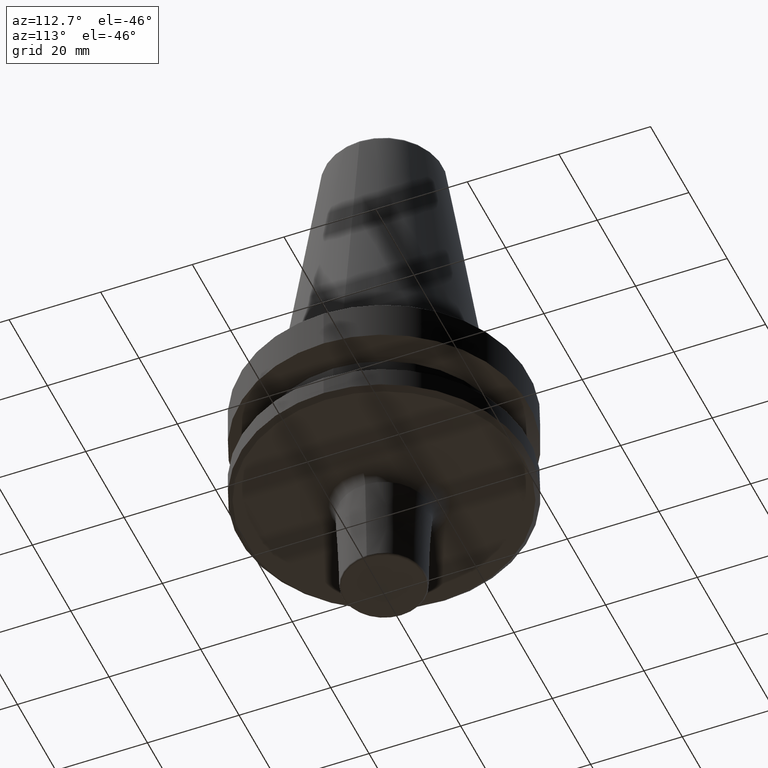
[diagram: clean part render]
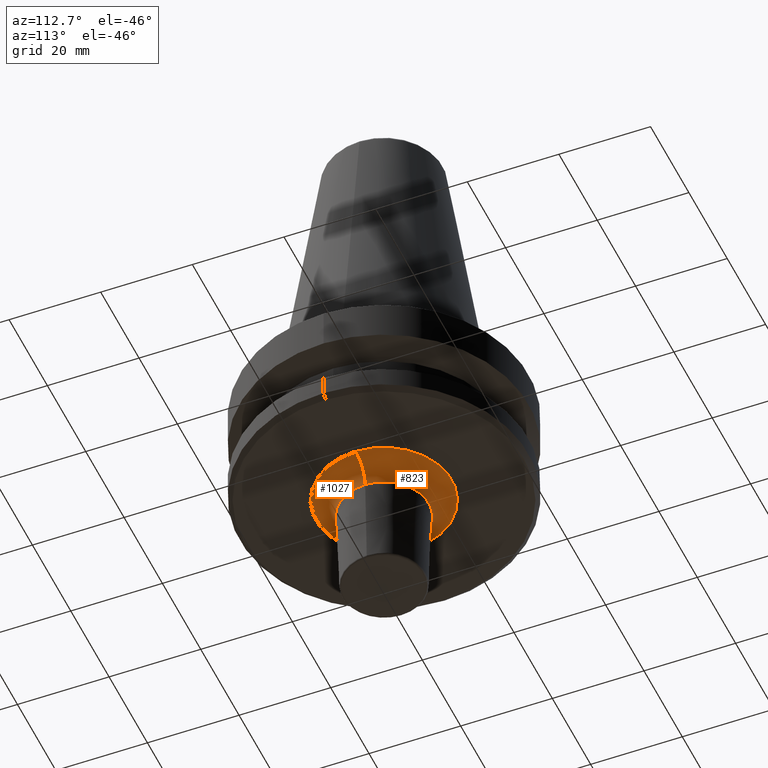
[diagram: same view with one multi-face feature highlighted, each face labeled with its STEP entity id]
A machine part, auxiliary view. The highlighted faces form ONE feature: a constant-radius fillet chain: 2 tangent blend faces with common blend radius 5 mm. The faces share edges in the B-rep.
Their STEP definitions:
[1] entity #823 (Torus):
#15 = CARTESIAN_POINT ( 'NONE',  ( 14.80399840127872000, 0.0000000000000000000, -92.40000000000806300 ) ) ;
#63 = DIRECTION ( 'NONE',  ( -0.0000000000000000000, -0.0000000000000000000, 1.000000000000000000 ) ) ;
#95 = CARTESIAN_POINT ( 'NONE',  ( 0.0000000000000000000, 0.0000000000000000000, -92.40000000000806300 ) ) ;
#122 = DIRECTION ( 'NONE',  ( 1.000000000000000000, 0.0000000000000000000, 0.0000000000000000000 ) ) ;
#142 = TOROIDAL_SURFACE ( 'NONE', #377, 14.80399840127872000, 4.999999999999993800 ) ;
#160 = CIRCLE ( 'NONE', #1022, 4.999999999999993800 ) ;
#175 = CARTESIAN_POINT ( 'NONE',  ( -14.80399840127872000, 1.812966925670851800E-015, -92.40000000000806300 ) ) ;
#194 = CARTESIAN_POINT ( 'NONE',  ( 0.0000000000000000000, 0.0000000000000000000, -97.20015980826369200 ) ) ;
#232 = AXIS2_PLACEMENT_3D ( 'NONE', #194, #964, #381 ) ;
#240 = DIRECTION ( 'NONE',  ( 1.224646799147353200E-016, 1.000000000000000000, 0.0000000000000000000 ) ) ;
#269 = EDGE_CURVE ( 'NONE', #420, #686, #848, .T. ) ;
#272 = AXIS2_PLACEMENT_3D ( 'NONE', #95, #437, #934 ) ;
#320 = CIRCLE ( 'NONE', #272, 14.80399840127872000 ) ;
#357 = DIRECTION ( 'NONE',  ( 0.0000000000000000000, 0.0000000000000000000, -1.000000000000000000 ) ) ;
#377 = AXIS2_PLACEMENT_3D ( 'NONE', #387, #63, #122 ) ;
#381 = DIRECTION ( 'NONE',  ( 1.000000000000000000, 0.0000000000000000000, 0.0000000000000000000 ) ) ;
#387 = CARTESIAN_POINT ( 'NONE',  ( 0.0000000000000000000, 0.0000000000000000000, -97.40000000000804900 ) ) ;
#395 = CIRCLE ( 'NONE', #550, 4.999999999999990200 ) ;
#420 = VERTEX_POINT ( 'NONE', #1019 ) ;
#429 = CARTESIAN_POINT ( 'NONE',  ( -9.807993607669777300, 1.507049861719950200E-015, -97.20015980826369200 ) ) ;
#437 = DIRECTION ( 'NONE',  ( -0.0000000000000000000, -0.0000000000000000000, 1.000000000000000000 ) ) ;
#525 = ORIENTED_EDGE ( 'NONE', *, *, #689, .T. ) ;
#542 = DIRECTION ( 'NONE',  ( -1.000000000000000000, 1.224646799147353700E-016, 0.0000000000000000000 ) ) ;
#550 = AXIS2_PLACEMENT_3D ( 'NONE', #840, #668, #357 ) ;
#599 = EDGE_CURVE ( 'NONE', #607, #686, #160, .T. ) ;
#607 = VERTEX_POINT ( 'NONE', #175 ) ;
#637 = ORIENTED_EDGE ( 'NONE', *, *, #819, .F. ) ;
#641 = EDGE_LOOP ( 'NONE', ( #900, #637, #525, #977 ) ) ;
#668 = DIRECTION ( 'NONE',  ( 0.0000000000000000000, -1.000000000000000000, 0.0000000000000000000 ) ) ;
#686 = VERTEX_POINT ( 'NONE', #429 ) ;
#689 = EDGE_CURVE ( 'NONE', #745, #420, #395, .T. ) ;
#745 = VERTEX_POINT ( 'NONE', #15 ) ;
#819 = EDGE_CURVE ( 'NONE', #745, #607, #320, .T. ) ;
#823 = ADVANCED_FACE ( 'NONE', ( #974 ), #142, .F. ) ;
#840 = CARTESIAN_POINT ( 'NONE',  ( 14.80399840127872000, 0.0000000000000000000, -97.40000000000804900 ) ) ;
#848 = CIRCLE ( 'NONE', #232, 9.807993607669777300 ) ;
#900 = ORIENTED_EDGE ( 'NONE', *, *, #599, .F. ) ;
#934 = DIRECTION ( 'NONE',  ( 1.000000000000000000, 0.0000000000000000000, 0.0000000000000000000 ) ) ;
#964 = DIRECTION ( 'NONE',  ( -0.0000000000000000000, -0.0000000000000000000, 1.000000000000000000 ) ) ;
#974 = FACE_OUTER_BOUND ( 'NONE', #641, .T. ) ;
#977 = ORIENTED_EDGE ( 'NONE', *, *, #269, .T. ) ;
#1019 = CARTESIAN_POINT ( 'NONE',  ( 9.807993607669777300, 0.0000000000000000000, -97.20015980826369200 ) ) ;
#1022 = AXIS2_PLACEMENT_3D ( 'NONE', #1040, #240, #542 ) ;
#1040 = CARTESIAN_POINT ( 'NONE',  ( -14.80399840127872000, 1.812966925670851800E-015, -97.40000000000804900 ) ) ;
[2] entity #1027 (Torus):
#15 = CARTESIAN_POINT ( 'NONE',  ( 14.80399840127872000, 0.0000000000000000000, -92.40000000000806300 ) ) ;
#42 = AXIS2_PLACEMENT_3D ( 'NONE', #223, #450, #956 ) ;
#79 = AXIS2_PLACEMENT_3D ( 'NONE', #892, #619, #943 ) ;
#160 = CIRCLE ( 'NONE', #1022, 4.999999999999993800 ) ;
#165 = ORIENTED_EDGE ( 'NONE', *, *, #648, .T. ) ;
#175 = CARTESIAN_POINT ( 'NONE',  ( -14.80399840127872000, 1.812966925670851800E-015, -92.40000000000806300 ) ) ;
#216 = CIRCLE ( 'NONE', #42, 14.80399840127872000 ) ;
#223 = CARTESIAN_POINT ( 'NONE',  ( 0.0000000000000000000, 0.0000000000000000000, -92.40000000000806300 ) ) ;
#240 = DIRECTION ( 'NONE',  ( 1.224646799147353200E-016, 1.000000000000000000, 0.0000000000000000000 ) ) ;
#346 = CARTESIAN_POINT ( 'NONE',  ( 0.0000000000000000000, 0.0000000000000000000, -97.40000000000804900 ) ) ;
#357 = DIRECTION ( 'NONE',  ( 0.0000000000000000000, 0.0000000000000000000, -1.000000000000000000 ) ) ;
#395 = CIRCLE ( 'NONE', #550, 4.999999999999990200 ) ;
#418 = DIRECTION ( 'NONE',  ( -0.0000000000000000000, -0.0000000000000000000, 1.000000000000000000 ) ) ;
#420 = VERTEX_POINT ( 'NONE', #1019 ) ;
#429 = CARTESIAN_POINT ( 'NONE',  ( -9.807993607669777300, 1.507049861719950200E-015, -97.20015980826369200 ) ) ;
#436 = EDGE_CURVE ( 'NONE', #607, #745, #216, .T. ) ;
#450 = DIRECTION ( 'NONE',  ( -0.0000000000000000000, -0.0000000000000000000, 1.000000000000000000 ) ) ;
#461 = FACE_OUTER_BOUND ( 'NONE', #839, .T. ) ;
#521 = CIRCLE ( 'NONE', #79, 9.807993607669777300 ) ;
#542 = DIRECTION ( 'NONE',  ( -1.000000000000000000, 1.224646799147353700E-016, 0.0000000000000000000 ) ) ;
#550 = AXIS2_PLACEMENT_3D ( 'NONE', #840, #668, #357 ) ;
#599 = EDGE_CURVE ( 'NONE', #607, #686, #160, .T. ) ;
#607 = VERTEX_POINT ( 'NONE', #175 ) ;
#619 = DIRECTION ( 'NONE',  ( -0.0000000000000000000, -0.0000000000000000000, 1.000000000000000000 ) ) ;
#648 = EDGE_CURVE ( 'NONE', #686, #420, #521, .T. ) ;
#666 = ORIENTED_EDGE ( 'NONE', *, *, #436, .F. ) ;
#668 = DIRECTION ( 'NONE',  ( 0.0000000000000000000, -1.000000000000000000, 0.0000000000000000000 ) ) ;
#686 = VERTEX_POINT ( 'NONE', #429 ) ;
#689 = EDGE_CURVE ( 'NONE', #745, #420, #395, .T. ) ;
#744 = ORIENTED_EDGE ( 'NONE', *, *, #689, .F. ) ;
#745 = VERTEX_POINT ( 'NONE', #15 ) ;
#765 = ORIENTED_EDGE ( 'NONE', *, *, #599, .T. ) ;
#830 = DIRECTION ( 'NONE',  ( 1.000000000000000000, 0.0000000000000000000, 0.0000000000000000000 ) ) ;
#839 = EDGE_LOOP ( 'NONE', ( #666, #765, #165, #744 ) ) ;
#840 = CARTESIAN_POINT ( 'NONE',  ( 14.80399840127872000, 0.0000000000000000000, -97.40000000000804900 ) ) ;
#892 = CARTESIAN_POINT ( 'NONE',  ( 0.0000000000000000000, 0.0000000000000000000, -97.20015980826369200 ) ) ;
#936 = TOROIDAL_SURFACE ( 'NONE', #981, 14.80399840127872000, 4.999999999999993800 ) ;
#943 = DIRECTION ( 'NONE',  ( 1.000000000000000000, 0.0000000000000000000, 0.0000000000000000000 ) ) ;
#956 = DIRECTION ( 'NONE',  ( 1.000000000000000000, 0.0000000000000000000, 0.0000000000000000000 ) ) ;
#981 = AXIS2_PLACEMENT_3D ( 'NONE', #346, #418, #830 ) ;
#1019 = CARTESIAN_POINT ( 'NONE',  ( 9.807993607669777300, 0.0000000000000000000, -97.20015980826369200 ) ) ;
#1022 = AXIS2_PLACEMENT_3D ( 'NONE', #1040, #240, #542 ) ;
#1027 = ADVANCED_FACE ( 'NONE', ( #461 ), #936, .F. ) ;
#1040 = CARTESIAN_POINT ( 'NONE',  ( -14.80399840127872000, 1.812966925670851800E-015, -97.40000000000804900 ) ) ;